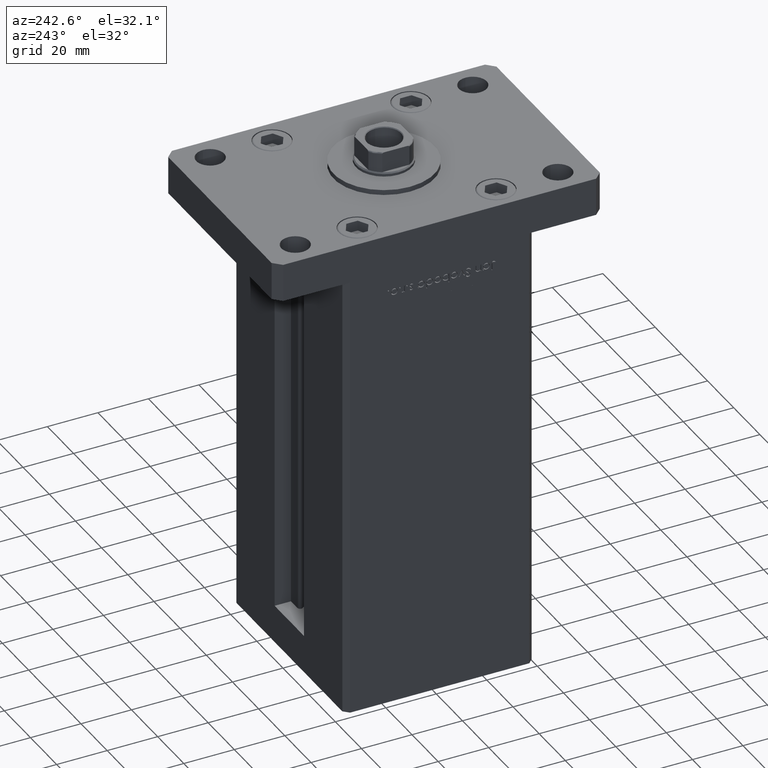
[diagram: clean part render]
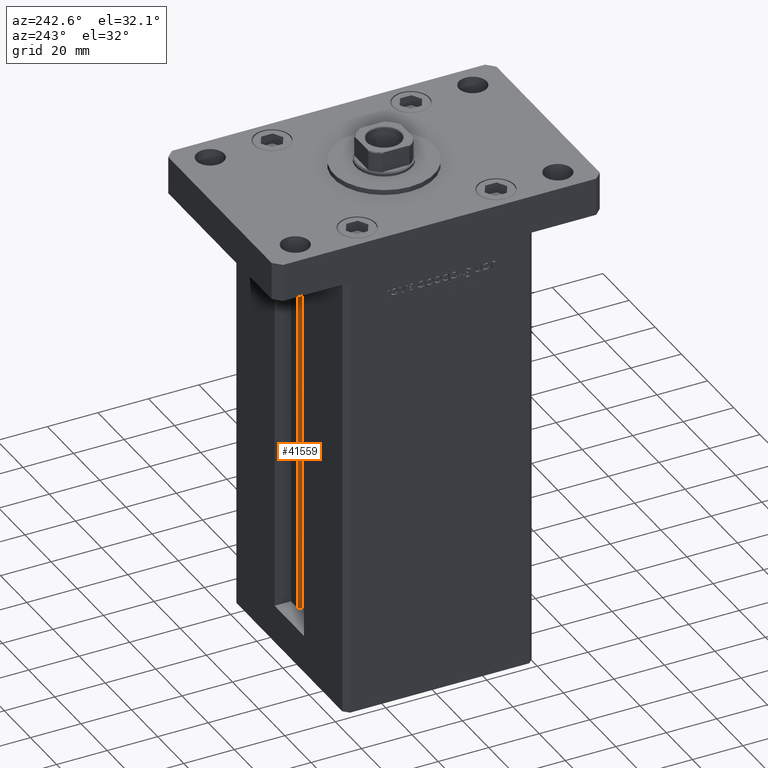
[diagram: same view with one face highlighted and labeled with its STEP entity id]
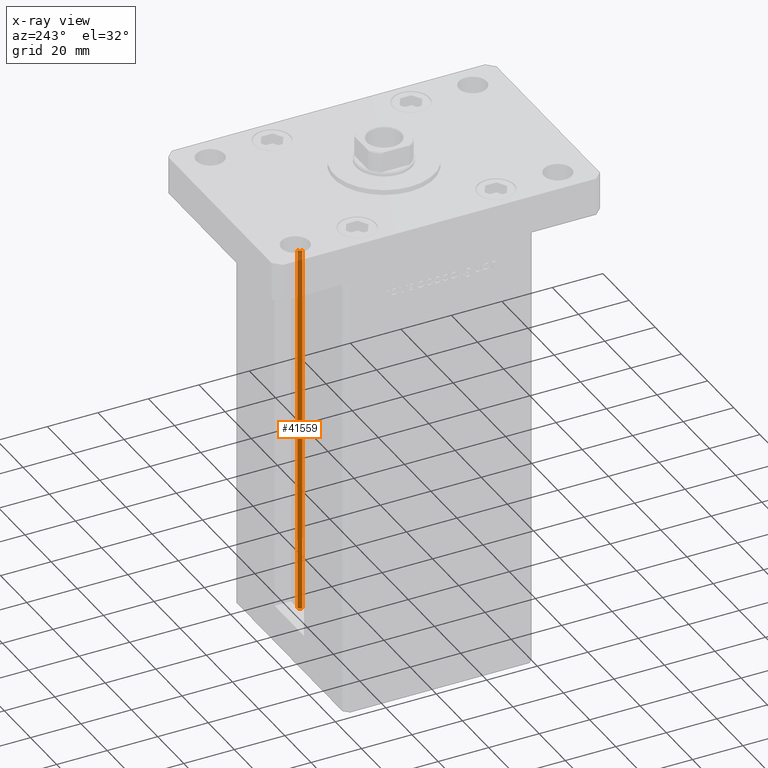
[diagram: x-ray of the same camera — body ghosted, the highlighted face saturated]
A machine part, auxiliary view. The second image highlights one B-rep face of the part: STEP entity #41559.
The next image is the same camera in x-ray: the body ghosted, the highlighted face saturated — about 13% of this face is hidden behind the body in this view.
In plain terms, the highlighted cylindrical surface (edge-blend (fillet) strip) has radius 0.9333 mm, axis along (0, 0, 1).
Its self-contained STEP definition (entity closure, byte-faithful):
#1404 = ORIENTED_EDGE ( 'NONE', *, *, #12205, .T. ) ;
#1703 = DIRECTION ( 'NONE',  ( 1.000000000000000000, 0.000000000000000000, 0.000000000000000000 ) ) ;
#2377 = VERTEX_POINT ( 'NONE', #46969 ) ;
#2501 = CYLINDRICAL_SURFACE ( 'NONE', #31736, 0.9333333333340015914 ) ;
#2868 = CARTESIAN_POINT ( 'NONE',  ( 5.375042956467943611, 29.59999999999899245, 0.000000000000000000 ) ) ;
#2924 = CARTESIAN_POINT ( 'NONE',  ( 5.375042956467943611, 29.59999999999899245, 0.000000000000000000 ) ) ;
#3525 = EDGE_CURVE ( 'NONE', #45540, #25200, #8977, .T. ) ;
#6323 = CARTESIAN_POINT ( 'NONE',  ( 6.183333333333999704, 30.06666666666599141, 0.000000000000000000 ) ) ;
#8977 = CIRCLE ( 'NONE', #39261, 0.9333333333340015914 ) ;
#9820 = FACE_OUTER_BOUND ( 'NONE', #42067, .T. ) ;
#12205 = EDGE_CURVE ( 'NONE', #45540, #43021, #28107, .T. ) ;
#13358 = LINE ( 'NONE', #46441, #25239 ) ;
#14186 = EDGE_CURVE ( 'NONE', #43021, #2377, #41306, .T. ) ;
#14949 = CARTESIAN_POINT ( 'NONE',  ( 6.183333333333999704, 30.99999999999999289, 0.000000000000000000 ) ) ;
#25200 = VERTEX_POINT ( 'NONE', #14949 ) ;
#25239 = VECTOR ( 'NONE', #42361, 1000.000000000000000 ) ;
#26367 = CARTESIAN_POINT ( 'NONE',  ( 6.183333333333999704, 30.06666666666599141, 0.000000000000000000 ) ) ;
#27476 = ORIENTED_EDGE ( 'NONE', *, *, #50737, .F. ) ;
#27814 = DIRECTION ( 'NONE',  ( 1.000000000000000000, 0.000000000000000000, 0.000000000000000000 ) ) ;
#28107 = LINE ( 'NONE', #2924, #36964 ) ;
#30711 = DIRECTION ( 'NONE',  ( 1.000000000000000000, 0.000000000000000000, 0.000000000000000000 ) ) ;
#31736 = AXIS2_PLACEMENT_3D ( 'NONE', #26367, #42884, #1703 ) ;
#36964 = VECTOR ( 'NONE', #51978, 1000.000000000000000 ) ;
#38712 = AXIS2_PLACEMENT_3D ( 'NONE', #48675, #48418, #27814 ) ;
#39261 = AXIS2_PLACEMENT_3D ( 'NONE', #6323, #43448, #30711 ) ;
#40857 = ORIENTED_EDGE ( 'NONE', *, *, #14186, .T. ) ;
#41306 = CIRCLE ( 'NONE', #38712, 0.9333333333340015914 ) ;
#41559 = ADVANCED_FACE ( 'NONE', ( #9820 ), #2501, .T. ) ;
#42067 = EDGE_LOOP ( 'NONE', ( #27476, #53181, #1404, #40857 ) ) ;
#42361 = DIRECTION ( 'NONE',  ( -0.000000000000000000, -0.000000000000000000, 1.000000000000000000 ) ) ;
#42884 = DIRECTION ( 'NONE',  ( -0.000000000000000000, -0.000000000000000000, 1.000000000000000000 ) ) ;
#43021 = VERTEX_POINT ( 'NONE', #48887 ) ;
#43448 = DIRECTION ( 'NONE',  ( -0.000000000000000000, -0.000000000000000000, -1.000000000000000000 ) ) ;
#45540 = VERTEX_POINT ( 'NONE', #2868 ) ;
#46441 = CARTESIAN_POINT ( 'NONE',  ( 6.183333333333999704, 30.99999999999999289, 0.000000000000000000 ) ) ;
#46969 = CARTESIAN_POINT ( 'NONE',  ( 6.183333333333999704, 30.99999999999999289, 148.5000000000000000 ) ) ;
#48418 = DIRECTION ( 'NONE',  ( 0.000000000000000000, 0.000000000000000000, -1.000000000000000000 ) ) ;
#48675 = CARTESIAN_POINT ( 'NONE',  ( 6.183333333333999704, 30.06666666666599141, 148.5000000000000000 ) ) ;
#48887 = CARTESIAN_POINT ( 'NONE',  ( 5.375042956467944499, 29.59999999999899245, 148.5000000000000000 ) ) ;
#50737 = EDGE_CURVE ( 'NONE', #25200, #2377, #13358, .T. ) ;
#51978 = DIRECTION ( 'NONE',  ( -0.000000000000000000, -0.000000000000000000, 1.000000000000000000 ) ) ;
#53181 = ORIENTED_EDGE ( 'NONE', *, *, #3525, .F. ) ;